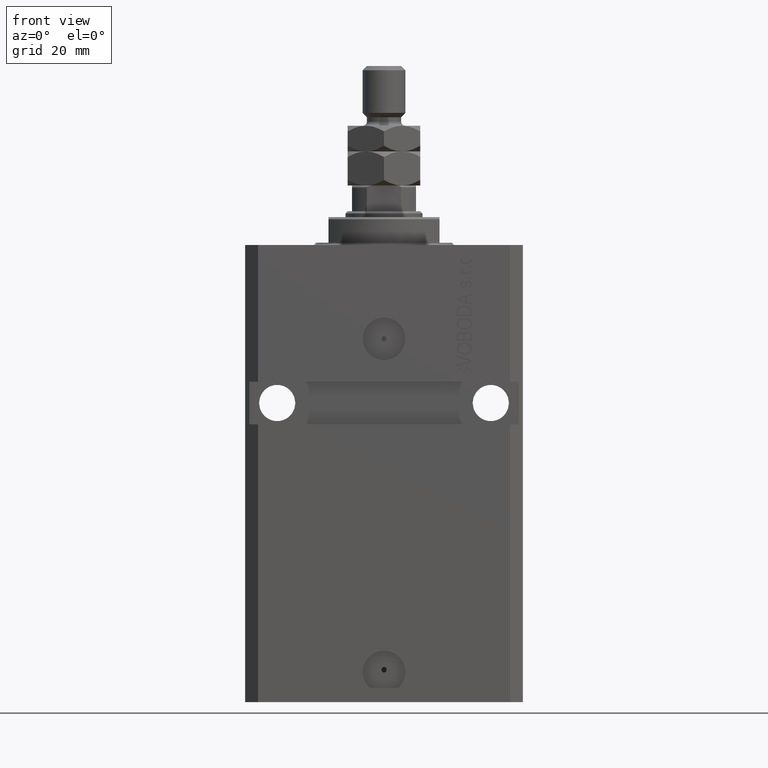
[diagram: clean part render]
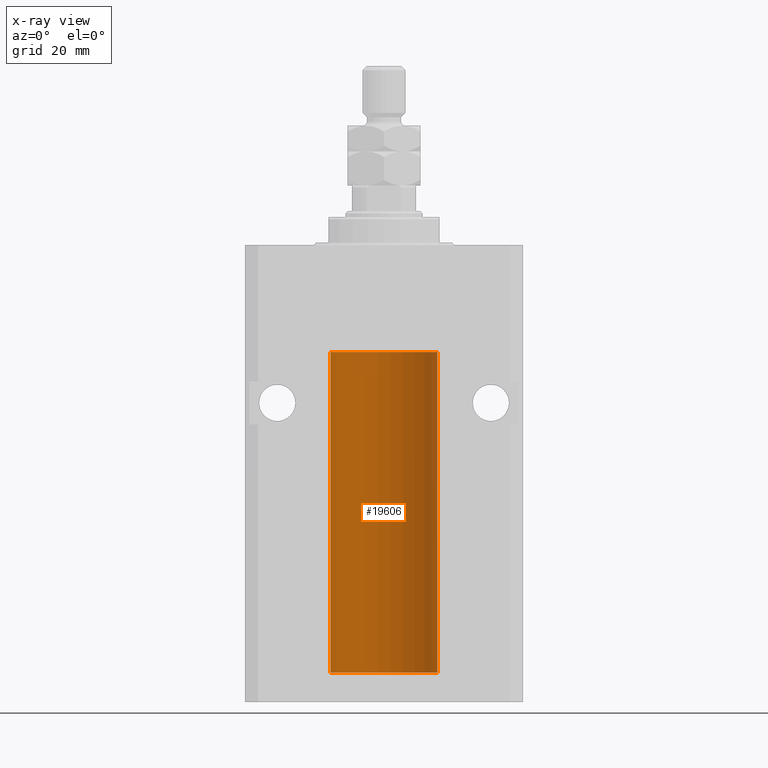
[diagram: x-ray — body ghosted, one internal face saturated and labeled with its STEP entity id]
A machine part, front view, then the same camera in x-ray: the body is ghosted and one INTERNAL B-rep face — a face not visible from any outside direction — is saturated and labeled: STEP entity #19606.
In plain terms, the highlighted cylindrical surface (partial cylindrical patch) has radius 12.5 mm, axis along (0, 0, 1).
Its self-contained STEP definition (entity closure, byte-faithful):
#38 = DIRECTION ( 'NONE',  ( 0.000000000000000000, 0.000000000000000000, 1.000000000000000000 ) ) ;
#1802 = VERTEX_POINT ( 'NONE', #12004 ) ;
#1994 = CARTESIAN_POINT ( 'NONE',  ( 0.000000000000000000, 0.000000000000000000, -100.0999999999999943 ) ) ;
#2538 = EDGE_CURVE ( 'NONE', #1802, #40133, #4512, .T. ) ;
#2660 = CARTESIAN_POINT ( 'NONE',  ( 12.48436522214846711, 0.6250000000078848039, -94.99999999999923261 ) ) ;
#2764 = CARTESIAN_POINT ( 'NONE',  ( 12.49421963472024721, 0.3844519291903572555, -95.49947303647047647 ) ) ;
#3502 = CARTESIAN_POINT ( 'NONE',  ( 12.50000000000000000, -1.836039810331332019E-15, -95.62500000000000000 ) ) ;
#3928 = CARTESIAN_POINT ( 'NONE',  ( -12.50000000000000000, 0.08260426088727994276, -94.37499999999998579 ) ) ;
#4186 = CARTESIAN_POINT ( 'NONE',  ( 12.50000000000000000, -1.836039810331332019E-15, -95.62500000000000000 ) ) ;
#4512 = B_SPLINE_CURVE_WITH_KNOTS ( 'NONE', 3,
 ( #38043, #3928, #8876, #31533, #39279, #27315, #39521, #46768, #46269, #35043, #19849, #38543, #34801, #42523 ),
 .UNSPECIFIED., .F., .F.,
 ( 4, 2, 2, 2, 2, 2, 4 ),
 ( 3.486178718436696769E-18, 0.0002442924852390829216, 0.0004885849704781623738, 0.0009771699409563507684, 0.001221462426195465403, 0.001465754911434580254, 0.001954339881912780900 ),
 .UNSPECIFIED. ) ;
#6009 = CARTESIAN_POINT ( 'NONE',  ( 12.48810305280568222, 0.5461368461738485003, -94.68525466142676805 ) ) ;
#6296 = VERTEX_POINT ( 'NONE', #2660 ) ;
#6742 = CARTESIAN_POINT ( 'NONE',  ( 12.50000000000017941, 3.868073689162038701E-13, -94.37499999999640465 ) ) ;
#6760 = CIRCLE ( 'NONE', #32202, 12.50000000000000000 ) ;
#7601 = VERTEX_POINT ( 'NONE', #39739 ) ;
#8020 = DIRECTION ( 'NONE',  ( -0.000000000000000000, -0.000000000000000000, 1.000000000000000000 ) ) ;
#8876 = CARTESIAN_POINT ( 'NONE',  ( -12.49915784441387068, 0.1636601911727894876, -94.39126818989429069 ) ) ;
#9679 = ORIENTED_EDGE ( 'NONE', *, *, #14907, .T. ) ;
#10555 = DIRECTION ( 'NONE',  ( 1.000000000000000000, 0.000000000000000000, 0.000000000000000000 ) ) ;
#11915 = VECTOR ( 'NONE', #12443, 1000.000000000000000 ) ;
#12004 = CARTESIAN_POINT ( 'NONE',  ( -12.50000000000000000, -1.522152011595579853E-14, -94.37500000000000000 ) ) ;
#12212 = ORIENTED_EDGE ( 'NONE', *, *, #39385, .T. ) ;
#12443 = DIRECTION ( 'NONE',  ( -0.000000000000000000, -0.000000000000000000, 1.000000000000000000 ) ) ;
#12949 = DIRECTION ( 'NONE',  ( 1.000000000000000000, 0.000000000000000000, 0.000000000000000000 ) ) ;
#13165 = EDGE_CURVE ( 'NONE', #1802, #36832, #28573, .T. ) ;
#13700 = CARTESIAN_POINT ( 'NONE',  ( 12.49999999999999822, 0.1631389616600901760, -94.37500000000024158 ) ) ;
#13886 = AXIS2_PLACEMENT_3D ( 'NONE', #1994, #21399, #14166 ) ;
#14042 = CARTESIAN_POINT ( 'NONE',  ( 0.000000000000000000, 0.000000000000000000, -100.0999999999999943 ) ) ;
#14166 = DIRECTION ( 'NONE',  ( 1.000000000000000000, 0.000000000000000000, 0.000000000000000000 ) ) ;
#14869 = VERTEX_POINT ( 'NONE', #18984 ) ;
#14907 = EDGE_CURVE ( 'NONE', #7601, #14869, #22972, .T. ) ;
#15947 = CARTESIAN_POINT ( 'NONE',  ( -12.50000000000000000, 1.530808498934191521E-15, -25.10000000000000142 ) ) ;
#16171 = LINE ( 'NONE', #46588, #11915 ) ;
#16491 = CIRCLE ( 'NONE', #26027, 12.50000000000000000 ) ;
#16924 = B_SPLINE_CURVE_WITH_KNOTS ( 'NONE', 3,
 ( #17688, #44855, #37128, #6009, #17442, #29394, #13700, #6742 ),
 .UNSPECIFIED., .F., .F.,
 ( 4, 2, 2, 4 ),
 ( 0.0009773924225142606621, 0.001221629287363811033, 0.001465866152213361404, 0.001954339881912461711 ),
 .UNSPECIFIED. ) ;
#17442 = CARTESIAN_POINT ( 'NONE',  ( 12.49012055744648997, 0.5002956126656082914, -94.61641710202405875 ) ) ;
#17660 = FACE_OUTER_BOUND ( 'NONE', #48213, .T. ) ;
#17688 = CARTESIAN_POINT ( 'NONE',  ( 12.48436522214846711, 0.6250000000078848039, -94.99999999999923261 ) ) ;
#17933 = CARTESIAN_POINT ( 'NONE',  ( 12.48436522214885969, 0.6250000000001505462, -95.16312747540308692 ) ) ;
#18317 = ORIENTED_EDGE ( 'NONE', *, *, #2538, .T. ) ;
#18438 = CARTESIAN_POINT ( 'NONE',  ( 12.48809900631782099, 0.5573988467445673001, -95.32640147935475738 ) ) ;
#18958 = CARTESIAN_POINT ( 'NONE',  ( 0.000000000000000000, 0.000000000000000000, -25.10000000000000142 ) ) ;
#18984 = CARTESIAN_POINT ( 'NONE',  ( 12.50000000000000000, 0.000000000000000000, -25.10000000000000142 ) ) ;
#19011 = EDGE_CURVE ( 'NONE', #28580, #35884, #6760, .T. ) ;
#19606 = ADVANCED_FACE ( 'NONE', ( #17660 ), #44077, .F. ) ;
#19802 = ORIENTED_EDGE ( 'NONE', *, *, #42942, .T. ) ;
#19849 = CARTESIAN_POINT ( 'NONE',  ( -12.49011732893843529, 0.5003763274120199833, -95.38348111289285214 ) ) ;
#21278 = DIRECTION ( 'NONE',  ( 0.000000000000000000, 0.000000000000000000, 1.000000000000000000 ) ) ;
#21399 = DIRECTION ( 'NONE',  ( -0.000000000000000000, -0.000000000000000000, 1.000000000000000000 ) ) ;
#21676 = CARTESIAN_POINT ( 'NONE',  ( 12.49999999999999822, 0.08262306818362624705, -95.62499999999998579 ) ) ;
#22319 = VECTOR ( 'NONE', #45494, 1000.000000000000000 ) ;
#22972 = LINE ( 'NONE', #46393, #33670 ) ;
#23149 = ORIENTED_EDGE ( 'NONE', *, *, #19011, .F. ) ;
#25143 = EDGE_CURVE ( 'NONE', #6296, #7601, #16924, .T. ) ;
#26027 = AXIS2_PLACEMENT_3D ( 'NONE', #18958, #38, #12949 ) ;
#27315 = CARTESIAN_POINT ( 'NONE',  ( -12.48810268015257741, 0.5573155909661239304, -94.67347410093871929 ) ) ;
#28020 = VECTOR ( 'NONE', #36543, 1000.000000000000000 ) ;
#28560 = ORIENTED_EDGE ( 'NONE', *, *, #46852, .F. ) ;
#28573 = LINE ( 'NONE', #32298, #28020 ) ;
#28580 = VERTEX_POINT ( 'NONE', #31167 ) ;
#29394 = CARTESIAN_POINT ( 'NONE',  ( 12.49631206032076136, 0.3252904079142934779, -94.44139700214928723 ) ) ;
#30024 = CARTESIAN_POINT ( 'NONE',  ( -12.50000000000000000, 1.530808498934191521E-15, -100.0999999999999943 ) ) ;
#31132 = ORIENTED_EDGE ( 'NONE', *, *, #13165, .F. ) ;
#31167 = CARTESIAN_POINT ( 'NONE',  ( 12.50000000000000000, 0.000000000000000000, -100.0999999999999943 ) ) ;
#31533 = CARTESIAN_POINT ( 'NONE',  ( -12.49625855304194033, 0.3150454781037993479, -94.45402800297488000 ) ) ;
#31857 = CARTESIAN_POINT ( 'NONE',  ( -12.50000000000000000, 1.530808498934191521E-15, -100.0999999999999943 ) ) ;
#32202 = AXIS2_PLACEMENT_3D ( 'NONE', #14042, #21278, #10555 ) ;
#32298 = CARTESIAN_POINT ( 'NONE',  ( -12.50000000000000000, 1.530808498934191521E-15, -100.0999999999999943 ) ) ;
#32877 = CARTESIAN_POINT ( 'NONE',  ( 12.48436522214846711, 0.6250000000078848039, -94.99999999999923261 ) ) ;
#33670 = VECTOR ( 'NONE', #8020, 1000.000000000000000 ) ;
#34801 = CARTESIAN_POINT ( 'NONE',  ( -12.49999999999999112, 0.1631761135151224562, -95.62499999999980105 ) ) ;
#35043 = CARTESIAN_POINT ( 'NONE',  ( -12.48809959379011403, 0.5462151254764922026, -95.31461370481613926 ) ) ;
#35884 = VERTEX_POINT ( 'NONE', #31857 ) ;
#36418 = CARTESIAN_POINT ( 'NONE',  ( -12.50000000000017941, 3.883381774819353300E-13, -95.62500000000359535 ) ) ;
#36543 = DIRECTION ( 'NONE',  ( -0.000000000000000000, -0.000000000000000000, 1.000000000000000000 ) ) ;
#36832 = VERTEX_POINT ( 'NONE', #15947 ) ;
#36880 = CARTESIAN_POINT ( 'NONE',  ( 12.49625698805481022, 0.3151108292486944906, -95.54593695688171806 ) ) ;
#37128 = CARTESIAN_POINT ( 'NONE',  ( 12.48520578595314845, 0.6087855079133740466, -94.83656717509346379 ) ) ;
#38043 = CARTESIAN_POINT ( 'NONE',  ( -12.50000000000000000, -1.522152011595579853E-14, -94.37500000000000000 ) ) ;
#38068 = B_SPLINE_CURVE_WITH_KNOTS ( 'NONE', 3,
 ( #3502, #21676, #44599, #36880, #2764, #18438, #17933, #32877 ),
 .UNSPECIFIED., .F., .F.,
 ( 4, 2, 2, 4 ),
 ( 1.784246692340212412E-18, 0.0002443481056285665750, 0.0004886962112571313068, 0.0009773924225142606621 ),
 .UNSPECIFIED. ) ;
#38543 = CARTESIAN_POINT ( 'NONE',  ( -12.49631005746706514, 0.3253680783018457756, -95.55856740465388555 ) ) ;
#39279 = CARTESIAN_POINT ( 'NONE',  ( -12.49422197749723829, 0.3843754434364257122, -94.50047099568094211 ) ) ;
#39385 = EDGE_CURVE ( 'NONE', #14869, #36832, #16491, .T. ) ;
#39521 = CARTESIAN_POINT ( 'NONE',  ( -12.48436813453758631, 0.6249418250771134886, -94.83668996798924411 ) ) ;
#39739 = CARTESIAN_POINT ( 'NONE',  ( 12.50000000000017941, 3.868073689162038701E-13, -94.37499999999640465 ) ) ;
#40133 = VERTEX_POINT ( 'NONE', #36418 ) ;
#40658 = ORIENTED_EDGE ( 'NONE', *, *, #25143, .T. ) ;
#42242 = LINE ( 'NONE', #30024, #22319 ) ;
#42523 = CARTESIAN_POINT ( 'NONE',  ( -12.50000000000017941, 3.883381774819353300E-13, -95.62500000000359535 ) ) ;
#42942 = EDGE_CURVE ( 'NONE', #44807, #6296, #38068, .T. ) ;
#44077 = CYLINDRICAL_SURFACE ( 'NONE', #13886, 12.50000000000000000 ) ;
#44501 = EDGE_CURVE ( 'NONE', #28580, #44807, #16171, .T. ) ;
#44599 = CARTESIAN_POINT ( 'NONE',  ( 12.49915742890631876, 0.1636982395582385896, -95.60872397847028026 ) ) ;
#44807 = VERTEX_POINT ( 'NONE', #4186 ) ;
#44855 = CARTESIAN_POINT ( 'NONE',  ( 12.48436522214888100, 0.6249999999996834754, -94.91847339462351840 ) ) ;
#45494 = DIRECTION ( 'NONE',  ( -0.000000000000000000, -0.000000000000000000, 1.000000000000000000 ) ) ;
#46269 = CARTESIAN_POINT ( 'NONE',  ( -12.48520330846397997, 0.6088355886774070580, -95.16325431852561678 ) ) ;
#46272 = ORIENTED_EDGE ( 'NONE', *, *, #44501, .T. ) ;
#46393 = CARTESIAN_POINT ( 'NONE',  ( 12.50000000000000000, 0.000000000000000000, -100.0999999999999943 ) ) ;
#46588 = CARTESIAN_POINT ( 'NONE',  ( 12.50000000000000000, 0.000000000000000000, -100.0999999999999943 ) ) ;
#46768 = CARTESIAN_POINT ( 'NONE',  ( -12.48436376893640620, 0.6250290278979871994, -95.08132082824478459 ) ) ;
#46852 = EDGE_CURVE ( 'NONE', #35884, #40133, #42242, .T. ) ;
#48213 = EDGE_LOOP ( 'NONE', ( #28560, #23149, #46272, #19802, #40658, #9679, #12212, #31132, #18317 ) ) ;